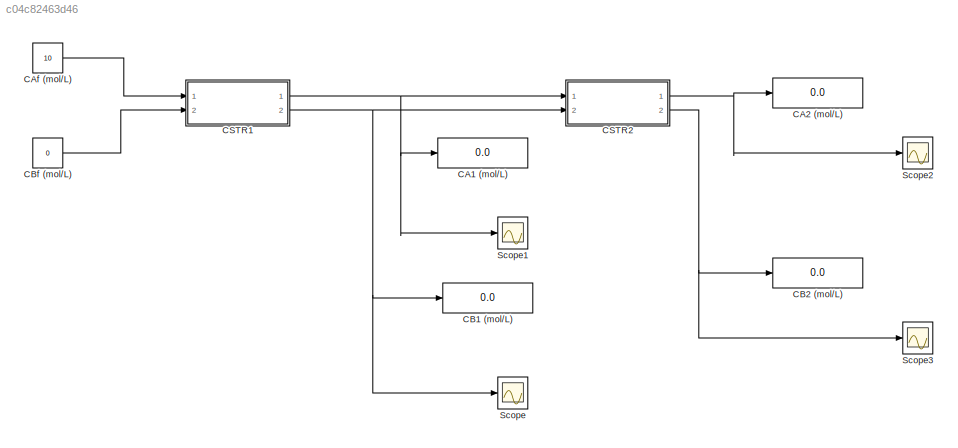
MODEL slx_c04c82463d46
KIND model
CONFIG AbsTol = auto
CONFIG EnableMultiTasking = off
CONFIG FixedStep = auto
CONFIG MaxStep = auto
CONFIG MinStep = auto
CONFIG RelTol = 1e-3
CONFIG SampleTimeConstraint = Unconstrained
CONFIG SolverName = VariableStepAuto
CONFIG StartTime = 0.0
CONFIG StopTime = 10.0
BLOCK [Display] CA1 (mol//L)
  Decimation = 1
  Ports = [1]
BLOCK [Display] CA2 (mol//L)
  Decimation = 1
  Ports = [1]
BLOCK [Constant] CAf (mol//L)
  Value = 10
BLOCK [Display] CB1 (mol//L)
  Decimation = 1
  Ports = [1]
BLOCK [Display] CB2 (mol//L)
  Decimation = 1
  Ports = [1]
BLOCK [Constant] CBf (mol//L)
  Value = 0
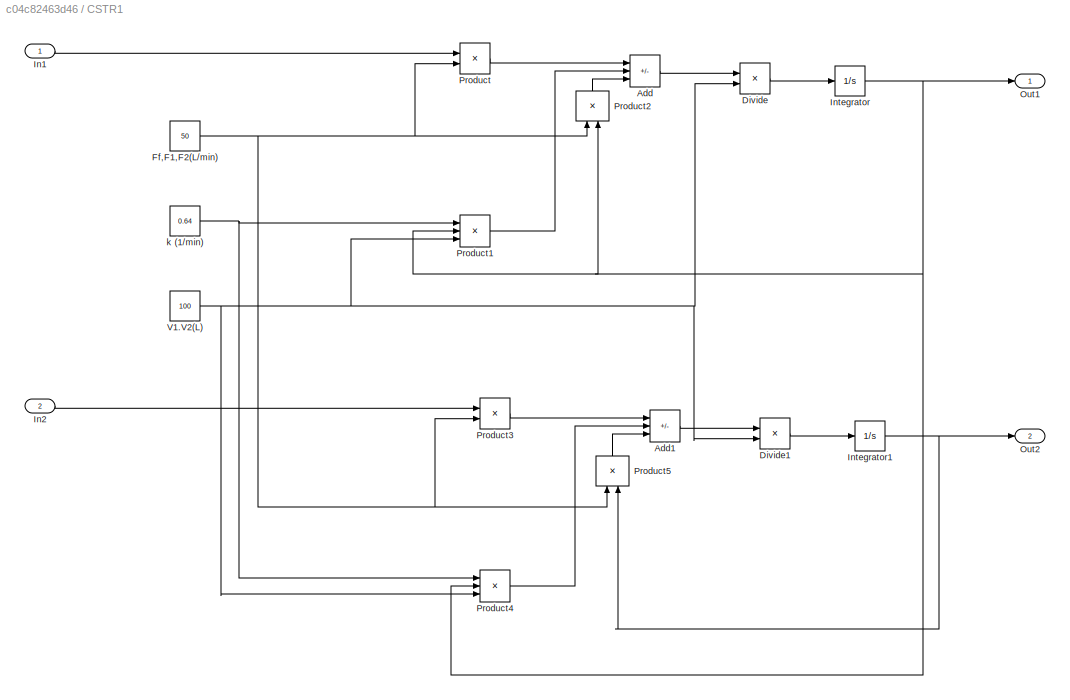
BLOCK [SubSystem] CSTR1
  Ports = [2, 2]
  RequestExecContextInheritance = off
BLOCK [Sum] CSTR1/Add
  IconShape = rectangular
  Inputs = +--
  Ports = [3, 1]
BLOCK [Sum] CSTR1/Add1
  IconShape = rectangular
  Inputs = ++-
  Ports = [3, 1]
BLOCK [Product] CSTR1/Divide
  Inputs = */
  Ports = [2, 1]
BLOCK [Product] CSTR1/Divide1
  Inputs = */
  Ports = [2, 1]
BLOCK [Constant] CSTR1/Ff,F1,F2(L//min)
  Value = 50
BLOCK [Inport] CSTR1/In1
BLOCK [Inport] CSTR1/In2
  Port = 2
BLOCK [Integrator] CSTR1/Integrator
  InitialCondition = 10
  Ports = [1, 1]
BLOCK [Integrator] CSTR1/Integrator1
  Ports = [1, 1]
BLOCK [Outport] CSTR1/Out1
BLOCK [Outport] CSTR1/Out2
  Port = 2
BLOCK [Product] CSTR1/Product
  Ports = [2, 1]
BLOCK [Product] CSTR1/Product1
  Inputs = 3
  Ports = [3, 1]
BLOCK [Product] CSTR1/Product2
  NameLocation = right
  Ports = [2, 1]
BLOCK [Product] CSTR1/Product3
  Ports = [2, 1]
BLOCK [Product] CSTR1/Product4
  Inputs = 3
  Ports = [3, 1]
BLOCK [Product] CSTR1/Product5
  NameLocation = right
  Ports = [2, 1]
BLOCK [Constant] CSTR1/V1.V2(L)
  Value = 100
BLOCK [Constant] CSTR1/k (1//min)
  Value = 0.64
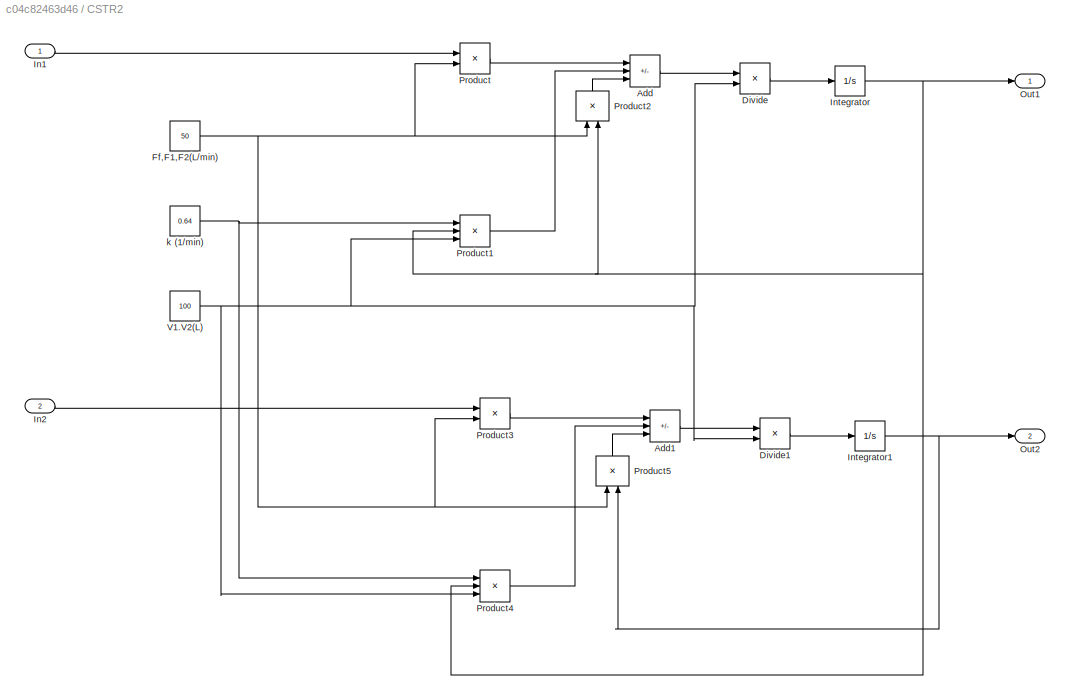
BLOCK [SubSystem] CSTR2
  Ports = [2, 2]
  RequestExecContextInheritance = off
BLOCK [Sum] CSTR2/Add
  IconShape = rectangular
  Inputs = +--
  Ports = [3, 1]
BLOCK [Sum] CSTR2/Add1
  IconShape = rectangular
  Inputs = ++-
  Ports = [3, 1]
BLOCK [Product] CSTR2/Divide
  Inputs = */
  Ports = [2, 1]
BLOCK [Product] CSTR2/Divide1
  Inputs = */
  Ports = [2, 1]
BLOCK [Constant] CSTR2/Ff,F1,F2(L//min)
  Value = 50
BLOCK [Inport] CSTR2/In1
BLOCK [Inport] CSTR2/In2
  Port = 2
BLOCK [Integrator] CSTR2/Integrator
  InitialCondition = 10
  Ports = [1, 1]
BLOCK [Integrator] CSTR2/Integrator1
  Ports = [1, 1]
BLOCK [Outport] CSTR2/Out1
BLOCK [Outport] CSTR2/Out2
  Port = 2
BLOCK [Product] CSTR2/Product
  Ports = [2, 1]
BLOCK [Product] CSTR2/Product1
  Inputs = 3
  Ports = [3, 1]
BLOCK [Product] CSTR2/Product2
  NameLocation = right
  Ports = [2, 1]
BLOCK [Product] CSTR2/Product3
  Ports = [2, 1]
BLOCK [Product] CSTR2/Product4
  Inputs = 3
  Ports = [3, 1]
BLOCK [Product] CSTR2/Product5
  NameLocation = right
  Ports = [2, 1]
BLOCK [Constant] CSTR2/V1.V2(L)
  Value = 100
BLOCK [Constant] CSTR2/k (1//min)
  Value = 0.64
BLOCK [Scope] Scope
  Floating = off
  NumInputPorts = 1
  Ports = [1]
  ScopeSpecificationString = Simulink.scopes.TimeScopeBlockCfg('CurrentConfiguration', extmgr.ConfigurationSet(extmgr.Configuration('Core','General UI',true),extmgr.Configuration('Core','Source UI',true),extmgr.Configuration('Sources','WiredSimulink',true),extmgr.Configuration('Visuals','Time Domain',true,'SerializedDisplays',{struct('MinYLimReal','-0.70175','MaxYLimReal','6.31572','YLabelReal','CB1','MinYLimMag','0.00000','M...<+1362ch>
BLOCK [Scope] Scope1
  Floating = off
  NumInputPorts = 1
  Ports = [1]
  ScopeSpecificationString = Simulink.scopes.TimeScopeBlockCfg('CurrentConfiguration', extmgr.ConfigurationSet(extmgr.Configuration('Core','General UI',true),extmgr.Configuration('Core','Source UI',true),extmgr.Configuration('Sources','WiredSimulink',true,'DataLoggingVariableName','ScopeData1'),extmgr.Configuration('Visuals','Time Domain',true,'SerializedDisplays',{struct('MinYLimReal','3.68428','MaxYLimReal','10.70175','YLab...<+1419ch>
BLOCK [Scope] Scope2
  Floating = off
  NumInputPorts = 1
  Ports = [1]
  ScopeSpecificationString = Simulink.scopes.TimeScopeBlockCfg('CurrentConfiguration', extmgr.ConfigurationSet(extmgr.Configuration('Core','General UI',true),extmgr.Configuration('Core','Source UI',true),extmgr.Configuration('Sources','WiredSimulink',true,'DataLoggingVariableName','ScopeData2'),extmgr.Configuration('Visuals','Time Domain',true,'SerializedDisplays',{struct('MinYLimReal','0.91458','MaxYLimReal','11.00949','YLab...<+1419ch>
BLOCK [Scope] Scope3
  Floating = off
  NumInputPorts = 1
  Ports = [1]
  ScopeSpecificationString = Simulink.scopes.TimeScopeBlockCfg('CurrentConfiguration', extmgr.ConfigurationSet(extmgr.Configuration('Core','General UI',true),extmgr.Configuration('Core','Source UI',true),extmgr.Configuration('Sources','WiredSimulink',true,'DataLoggingVariableName','ScopeData3'),extmgr.Configuration('Visuals','Time Domain',true,'SerializedDisplays',{struct('MinYLimReal','-1.00949','MaxYLimReal','9.08542','YLab...<+1401ch>
LINE CAf (mol//L):1 -> CSTR1:1
LINE CBf (mol//L):1 -> CSTR1:2
LINE CSTR1/Add1:1 -> CSTR1/Divide1:1
LINE CSTR1/Add:1 -> CSTR1/Divide:1
LINE CSTR1/Divide1:1 -> CSTR1/Integrator1:1
LINE CSTR1/Divide:1 -> CSTR1/Integrator:1
NET CSTR1/Ff,F1,F2(L//min):1 -> CSTR1/Product2:1, CSTR1/Product3:2, CSTR1/Product5:1, CSTR1/Product:2
LINE CSTR1/In1:1 -> CSTR1/Product:1
LINE CSTR1/In2:1 -> CSTR1/Product3:1
NET CSTR1/Integrator1:1 -> CSTR1/Out2:1, CSTR1/Product5:2
NET CSTR1/Integrator:1 -> CSTR1/Out1:1, CSTR1/Product1:2, CSTR1/Product2:2, CSTR1/Product4:2
LINE CSTR1/Product1:1 -> CSTR1/Add:2
LINE CSTR1/Product2:1 -> CSTR1/Add:3
LINE CSTR1/Product3:1 -> CSTR1/Add1:1
LINE CSTR1/Product4:1 -> CSTR1/Add1:2
LINE CSTR1/Product5:1 -> CSTR1/Add1:3
LINE CSTR1/Product:1 -> CSTR1/Add:1
NET CSTR1/V1.V2(L):1 -> CSTR1/Divide1:2, CSTR1/Divide:2, CSTR1/Product1:3, CSTR1/Product4:3
NET CSTR1/k (1//min):1 -> CSTR1/Product1:1, CSTR1/Product4:1
NET CSTR1:1 -> CA1 (mol//L):1, CSTR2:1, Scope1:1
NET CSTR1:2 -> CB1 (mol//L):1, CSTR2:2, Scope:1
LINE CSTR2/Add1:1 -> CSTR2/Divide1:1
LINE CSTR2/Add:1 -> CSTR2/Divide:1
LINE CSTR2/Divide1:1 -> CSTR2/Integrator1:1
LINE CSTR2/Divide:1 -> CSTR2/Integrator:1
NET CSTR2/Ff,F1,F2(L//min):1 -> CSTR2/Product2:1, CSTR2/Product3:2, CSTR2/Product5:1, CSTR2/Product:2
LINE CSTR2/In1:1 -> CSTR2/Product:1
LINE CSTR2/In2:1 -> CSTR2/Product3:1
NET CSTR2/Integrator1:1 -> CSTR2/Out2:1, CSTR2/Product5:2
NET CSTR2/Integrator:1 -> CSTR2/Out1:1, CSTR2/Product1:2, CSTR2/Product2:2, CSTR2/Product4:2
LINE CSTR2/Product1:1 -> CSTR2/Add:2
LINE CSTR2/Product2:1 -> CSTR2/Add:3
LINE CSTR2/Product3:1 -> CSTR2/Add1:1
LINE CSTR2/Product4:1 -> CSTR2/Add1:2
LINE CSTR2/Product5:1 -> CSTR2/Add1:3
LINE CSTR2/Product:1 -> CSTR2/Add:1
NET CSTR2/V1.V2(L):1 -> CSTR2/Divide1:2, CSTR2/Divide:2, CSTR2/Product1:3, CSTR2/Product4:3
NET CSTR2/k (1//min):1 -> CSTR2/Product1:1, CSTR2/Product4:1
NET CSTR2:1 -> CA2 (mol//L):1, Scope2:1
NET CSTR2:2 -> CB2 (mol//L):1, Scope3:1
note: NET lines group one-source signal fan-out (src -> all destinations, sorted); 1:1 wires keep LINE
